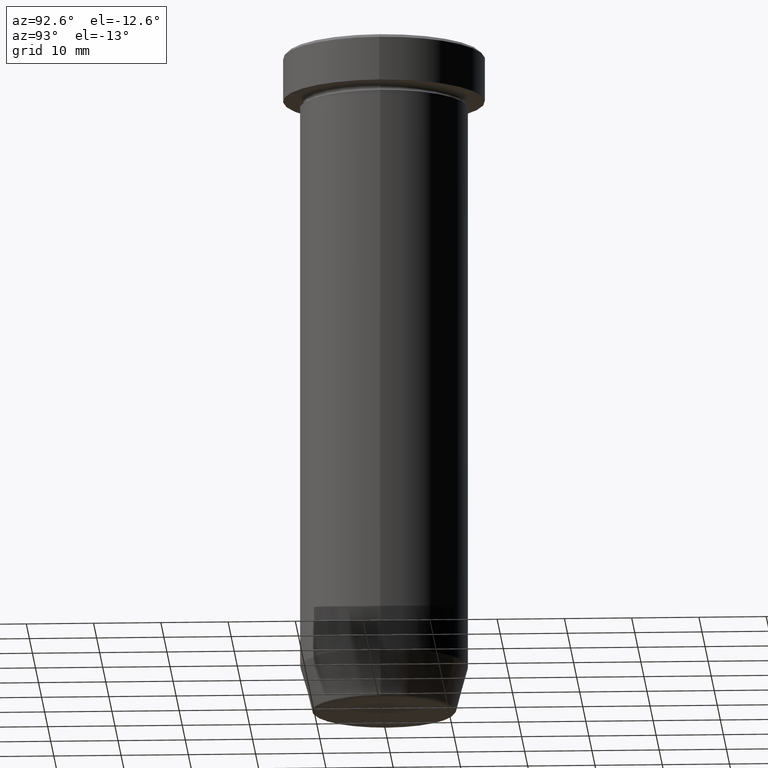
[diagram: clean part render]
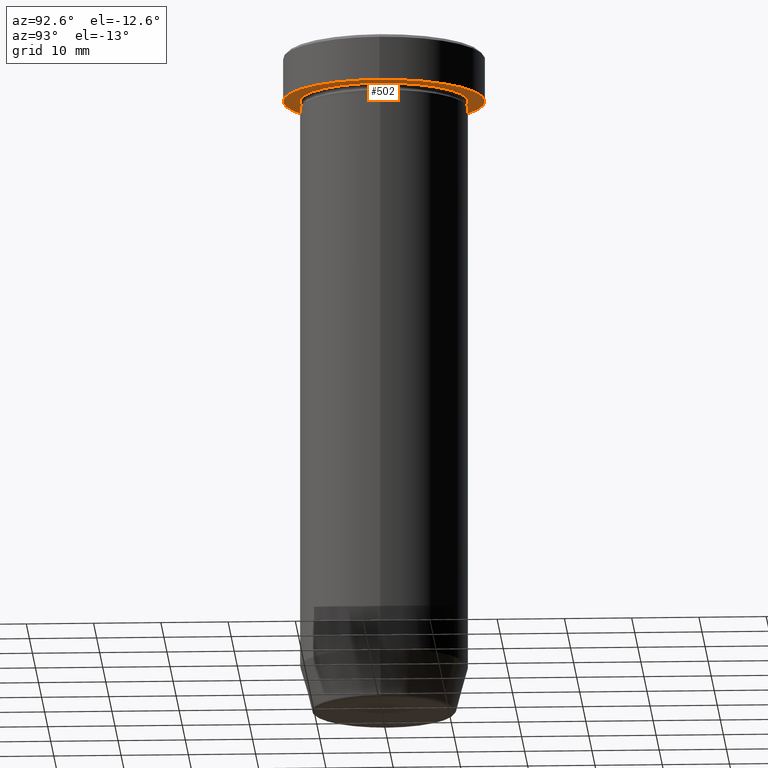
[diagram: same view with one face highlighted and labeled with its STEP entity id]
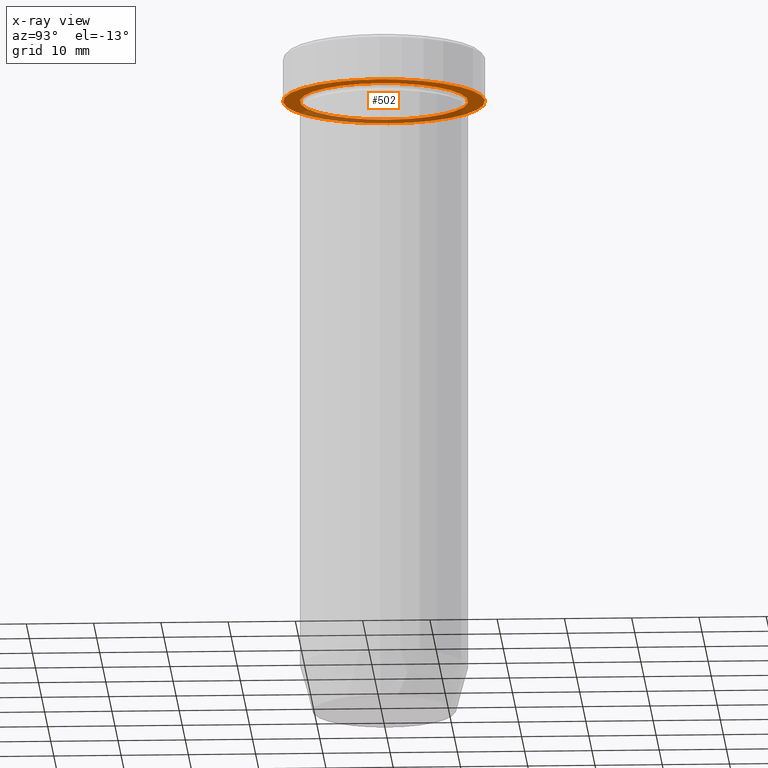
[diagram: x-ray of the same camera — body ghosted, the highlighted face saturated]
A machine part, auxiliary view. The second image highlights one B-rep face of the part: STEP entity #502.
The next image is the same camera in x-ray: the body ghosted, the highlighted face saturated — about 33% of this face is hidden behind the body in this view.
In plain terms, the highlighted planar face has unit normal (0, 0, -1).
Its self-contained STEP definition (entity closure, byte-faithful):
#4 = VERTEX_POINT ( 'NONE', #394 ) ;
#22 = CARTESIAN_POINT ( 'NONE',  ( 0.000000000000000000, 15.00000000000000000, -6.999999999999999112 ) ) ;
#47 = EDGE_CURVE ( 'NONE', #274, #60, #146, .T. ) ;
#60 = VERTEX_POINT ( 'NONE', #412 ) ;
#68 = EDGE_CURVE ( 'NONE', #4, #576, #158, .T. ) ;
#70 = AXIS2_PLACEMENT_3D ( 'NONE', #460, #554, #135 ) ;
#73 = ORIENTED_EDGE ( 'NONE', *, *, #578, .F. ) ;
#79 = AXIS2_PLACEMENT_3D ( 'NONE', #503, #162, #164 ) ;
#85 = CARTESIAN_POINT ( 'NONE',  ( -15.00000000000000000, 1.836970198721029589E-15, -6.999999999999999112 ) ) ;
#86 = ORIENTED_EDGE ( 'NONE', *, *, #68, .T. ) ;
#108 = CARTESIAN_POINT ( 'NONE',  ( 0.000000000000000000, 0.000000000000000000, -6.999999999999999112 ) ) ;
#113 = CARTESIAN_POINT ( 'NONE',  ( 0.000000000000000000, 0.000000000000000000, -6.999999999999999112 ) ) ;
#132 = EDGE_LOOP ( 'NONE', ( #281, #86 ) ) ;
#134 = AXIS2_PLACEMENT_3D ( 'NONE', #113, #504, #456 ) ;
#135 = DIRECTION ( 'NONE',  ( 1.000000000000000000, 0.000000000000000000, 0.000000000000000000 ) ) ;
#146 = CIRCLE ( 'NONE', #308, 15.00000000000000000 ) ;
#158 = CIRCLE ( 'NONE', #134, 12.50000000000000000 ) ;
#162 = DIRECTION ( 'NONE',  ( -0.000000000000000000, -0.000000000000000000, 1.000000000000000000 ) ) ;
#163 = EDGE_CURVE ( 'NONE', #576, #4, #389, .T. ) ;
#164 = DIRECTION ( 'NONE',  ( -1.000000000000000000, 0.000000000000000000, 0.000000000000000000 ) ) ;
#168 = DIRECTION ( 'NONE',  ( -1.000000000000000000, 0.000000000000000000, -0.000000000000000000 ) ) ;
#175 = CARTESIAN_POINT ( 'NONE',  ( -12.50000000000000000, 0.000000000000000000, -6.999999999999999112 ) ) ;
#180 = AXIS2_PLACEMENT_3D ( 'NONE', #22, #531, #168 ) ;
#254 = ORIENTED_EDGE ( 'NONE', *, *, #47, .F. ) ;
#274 = VERTEX_POINT ( 'NONE', #85 ) ;
#281 = ORIENTED_EDGE ( 'NONE', *, *, #163, .T. ) ;
#295 = DIRECTION ( 'NONE',  ( -0.000000000000000000, -0.000000000000000000, 1.000000000000000000 ) ) ;
#308 = AXIS2_PLACEMENT_3D ( 'NONE', #108, #295, #484 ) ;
#389 = CIRCLE ( 'NONE', #79, 12.50000000000000000 ) ;
#394 = CARTESIAN_POINT ( 'NONE',  ( 12.50000000000000000, 1.530808498934191521E-15, -6.999999999999999112 ) ) ;
#411 = FACE_BOUND ( 'NONE', #132, .T. ) ;
#412 = CARTESIAN_POINT ( 'NONE',  ( 15.00000000000000000, 0.000000000000000000, -6.999999999999999112 ) ) ;
#456 = DIRECTION ( 'NONE',  ( -1.000000000000000000, 0.000000000000000000, 0.000000000000000000 ) ) ;
#460 = CARTESIAN_POINT ( 'NONE',  ( 0.000000000000000000, 0.000000000000000000, -6.999999999999999112 ) ) ;
#484 = DIRECTION ( 'NONE',  ( 1.000000000000000000, 0.000000000000000000, 0.000000000000000000 ) ) ;
#502 = ADVANCED_FACE ( 'NONE', ( #411, #546 ), #589, .T. ) ;
#503 = CARTESIAN_POINT ( 'NONE',  ( 0.000000000000000000, 0.000000000000000000, -6.999999999999999112 ) ) ;
#504 = DIRECTION ( 'NONE',  ( -0.000000000000000000, -0.000000000000000000, 1.000000000000000000 ) ) ;
#521 = EDGE_LOOP ( 'NONE', ( #73, #254 ) ) ;
#531 = DIRECTION ( 'NONE',  ( 0.000000000000000000, 0.000000000000000000, -1.000000000000000000 ) ) ;
#546 = FACE_OUTER_BOUND ( 'NONE', #521, .T. ) ;
#550 = CIRCLE ( 'NONE', #70, 15.00000000000000000 ) ;
#554 = DIRECTION ( 'NONE',  ( -0.000000000000000000, -0.000000000000000000, 1.000000000000000000 ) ) ;
#576 = VERTEX_POINT ( 'NONE', #175 ) ;
#578 = EDGE_CURVE ( 'NONE', #60, #274, #550, .T. ) ;
#589 = PLANE ( 'NONE',  #180 ) ;